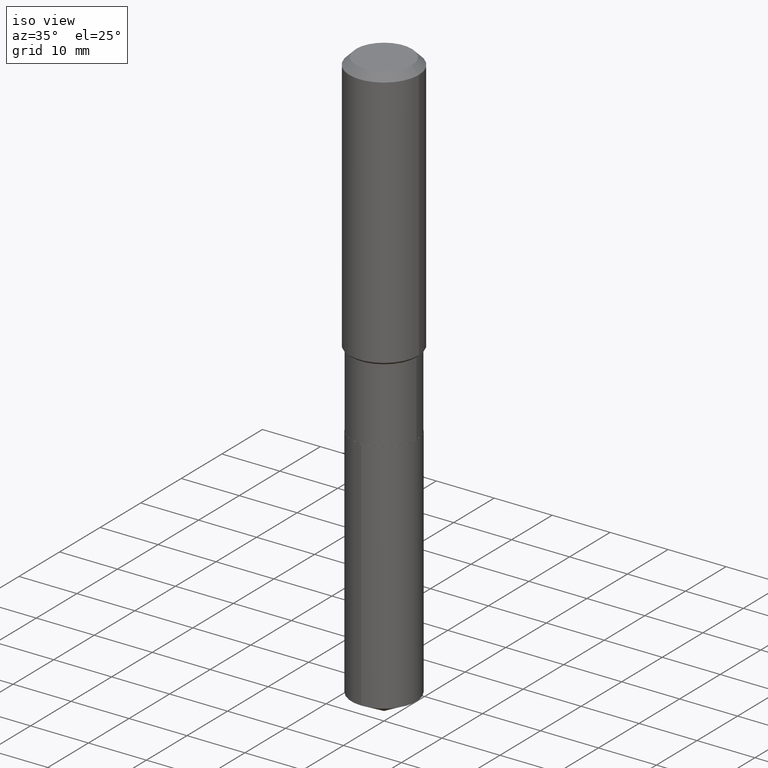
[diagram: clean part render]
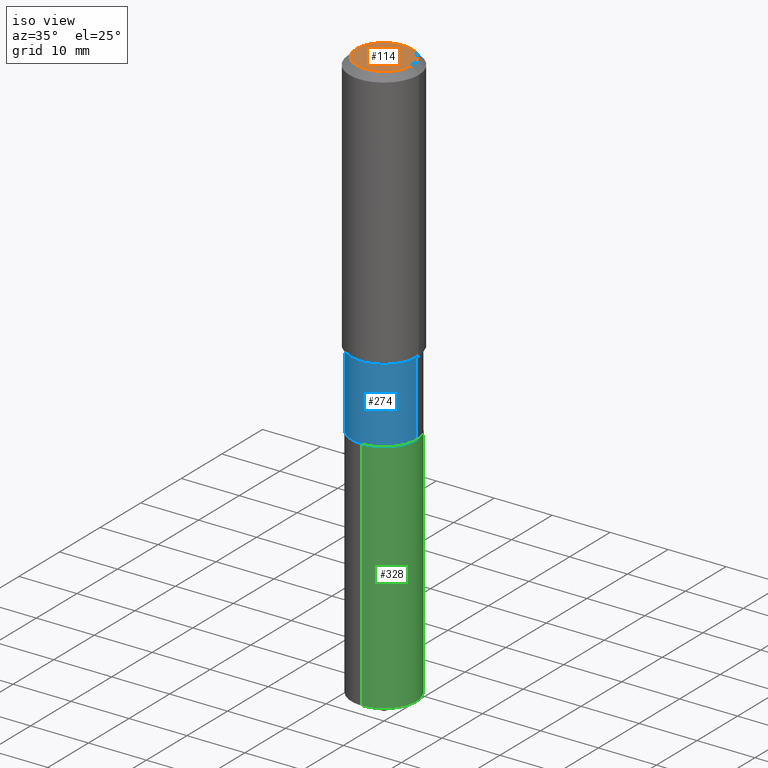
[diagram: same view with three faces highlighted in distinct colors, each labeled with its STEP entity id]
A machine part, iso view with three faces highlighted in distinct colors.
Their STEP definitions:

[orange] entity #114 — the highlighted planar face has unit normal (0, -0, -1).
#1 = DIRECTION ( 'NONE',  ( 1.000000000000000000, -6.982962677686266711E-15, 4.876185090822587894E-29 ) ) ;
#32 = CIRCLE ( 'NONE', #482, 0.1889600000000000168 ) ;
#47 = ORIENTED_EDGE ( 'NONE', *, *, #322, .T. ) ;
#48 = AXIS2_PLACEMENT_3D ( 'NONE', #88, #195, #1 ) ;
#81 = CARTESIAN_POINT ( 'NONE',  ( -4.713871149261273121E-47, 6.730158695841826722E-33, 1.927594061857931128E-18 ) ) ;
#88 = CARTESIAN_POINT ( 'NONE',  ( -9.427742298522546243E-47, 1.346031739168365344E-32, 3.855188123715862256E-18 ) ) ;
#111 = DIRECTION ( 'NONE',  ( 1.000000000000000000, -6.982962677686266711E-15, 4.876185090822587894E-29 ) ) ;
#112 = EDGE_CURVE ( 'NONE', #142, #450, #32, .T. ) ;
#114 = ADVANCED_FACE ( 'NONE', ( #454 ), #490, .F. ) ;
#142 = VERTEX_POINT ( 'NONE', #298 ) ;
#150 = DIRECTION ( 'NONE',  ( -1.000000000000000000, 6.982962677686265922E-15, -4.876176775795935793E-29 ) ) ;
#151 = EDGE_LOOP ( 'NONE', ( #388, #47 ) ) ;
#195 = DIRECTION ( 'NONE',  ( -2.445468806185136597E-29, 3.491481338843145583E-15, 1.000000000000000000 ) ) ;
#298 = CARTESIAN_POINT ( 'NONE',  ( -0.1889600000000000168, 1.401969416799070942E-15, 3.855188123706346622E-18 ) ) ;
#300 = CIRCLE ( 'NONE', #48, 0.1889600000000000168 ) ;
#322 = EDGE_CURVE ( 'NONE', #450, #142, #300, .T. ) ;
#324 = AXIS2_PLACEMENT_3D ( 'NONE', #81, #444, #150 ) ;
#374 = DIRECTION ( 'NONE',  ( -2.445468806185136597E-29, 3.491481338843145583E-15, 1.000000000000000000 ) ) ;
#388 = ORIENTED_EDGE ( 'NONE', *, *, #112, .T. ) ;
#444 = DIRECTION ( 'NONE',  ( 2.438088387897960049E-29, -3.491481338843145188E-15, -1.000000000000000000 ) ) ;
#447 = CARTESIAN_POINT ( 'NONE',  ( -9.427742298522546243E-47, 1.346031739168365344E-32, 3.855188123715862256E-18 ) ) ;
#450 = VERTEX_POINT ( 'NONE', #464 ) ;
#454 = FACE_OUTER_BOUND ( 'NONE', #151, .T. ) ;
#464 = CARTESIAN_POINT ( 'NONE',  ( 0.1889600000000000168, -1.540873453589747738E-15, 3.855188123725863225E-18 ) ) ;
#482 = AXIS2_PLACEMENT_3D ( 'NONE', #447, #374, #111 ) ;
#490 = PLANE ( 'NONE',  #324 ) ;

[blue] entity #274 — the highlighted cylindrical surface (partial cylindrical patch) has radius 5.5994 mm, axis along (-0, 0, 1).
#4 = FACE_OUTER_BOUND ( 'NONE', #232, .T. ) ;
#6 = VERTEX_POINT ( 'NONE', #71 ) ;
#16 = VECTOR ( 'NONE', #479, 39.37007874015748143 ) ;
#24 = EDGE_CURVE ( 'NONE', #269, #6, #284, .T. ) ;
#27 = LINE ( 'NONE', #58, #16 ) ;
#34 = EDGE_CURVE ( 'NONE', #269, #419, #340, .T. ) ;
#43 = ORIENTED_EDGE ( 'NONE', *, *, #24, .F. ) ;
#44 = DIRECTION ( 'NONE',  ( -2.445468806185136597E-29, 3.491481338843145583E-15, 1.000000000000000000 ) ) ;
#51 = DIRECTION ( 'NONE',  ( 1.000000000000000000, -6.982962677686265133E-15, 0.000000000000000000 ) ) ;
#54 = EDGE_CURVE ( 'NONE', #419, #94, #27, .T. ) ;
#58 = CARTESIAN_POINT ( 'NONE',  ( 0.2204499999999999793, -1.539394122295937264E-15, 1.074953170224213743E-29 ) ) ;
#62 = CARTESIAN_POINT ( 'NONE',  ( 5.601835394328292774E-29, -7.997936302887994361E-15, -2.290700000000000180 ) ) ;
#71 = CARTESIAN_POINT ( 'NONE',  ( -0.2204499999999999238, -5.547327192842826592E-15, -1.784200000000000008 ) ) ;
#85 = CARTESIAN_POINT ( 'NONE',  ( 0.000000000000000000, 0.000000000000000000, 0.000000000000000000 ) ) ;
#94 = VERTEX_POINT ( 'NONE', #478 ) ;
#197 = CYLINDRICAL_SURFACE ( 'NONE', #449, 0.2204499999999999793 ) ;
#201 = CARTESIAN_POINT ( 'NONE',  ( 4.363205443995520859E-29, -6.229501004763940248E-15, -1.784200000000000008 ) ) ;
#217 = DIRECTION ( 'NONE',  ( -2.445468806185136877E-29, 3.491481338843145188E-15, 1.000000000000000000 ) ) ;
#232 = EDGE_LOOP ( 'NONE', ( #43, #271, #461, #235 ) ) ;
#235 = ORIENTED_EDGE ( 'NONE', *, *, #377, .F. ) ;
#269 = VERTEX_POINT ( 'NONE', #354 ) ;
#271 = ORIENTED_EDGE ( 'NONE', *, *, #34, .T. ) ;
#274 = ADVANCED_FACE ( 'NONE', ( #4 ), #197, .T. ) ;
#284 = LINE ( 'NONE', #291, #433 ) ;
#285 = CIRCLE ( 'NONE', #293, 0.2204499999999999238 ) ;
#291 = CARTESIAN_POINT ( 'NONE',  ( -0.2204499999999999793, 1.566391460983140713E-15, -1.084379240646693833E-29 ) ) ;
#293 = AXIS2_PLACEMENT_3D ( 'NONE', #201, #44, #51 ) ;
#316 = DIRECTION ( 'NONE',  ( -2.445468806185136597E-29, 3.491481338843145583E-15, 1.000000000000000000 ) ) ;
#327 = DIRECTION ( 'NONE',  ( -2.445468806185136597E-29, 3.491481338843145583E-15, 1.000000000000000000 ) ) ;
#340 = CIRCLE ( 'NONE', #403, 0.2204500000000000071 ) ;
#350 = DIRECTION ( 'NONE',  ( 1.000000000000000000, -6.982962677686265922E-15, 4.876176775795934672E-29 ) ) ;
#354 = CARTESIAN_POINT ( 'NONE',  ( -0.2204500000000000071, -5.547327192842825803E-15, -2.290700000000000180 ) ) ;
#366 = DIRECTION ( 'NONE',  ( 1.000000000000000000, -6.982962677686267499E-15, 0.000000000000000000 ) ) ;
#377 = EDGE_CURVE ( 'NONE', #6, #94, #285, .T. ) ;
#403 = AXIS2_PLACEMENT_3D ( 'NONE', #62, #327, #366 ) ;
#419 = VERTEX_POINT ( 'NONE', #421 ) ;
#421 = CARTESIAN_POINT ( 'NONE',  ( 0.2204500000000000071, -9.537330425183932217E-15, -2.290700000000000180 ) ) ;
#433 = VECTOR ( 'NONE', #217, 39.37007874015748143 ) ;
#449 = AXIS2_PLACEMENT_3D ( 'NONE', #85, #316, #350 ) ;
#461 = ORIENTED_EDGE ( 'NONE', *, *, #54, .T. ) ;
#478 = CARTESIAN_POINT ( 'NONE',  ( 0.2204499999999999238, -7.768895127059877315E-15, -1.784200000000000008 ) ) ;
#479 = DIRECTION ( 'NONE',  ( -2.445468806185136877E-29, 3.491481338843145188E-15, 1.000000000000000000 ) ) ;

[green] entity #328 — the highlighted cylindrical surface (partial cylindrical patch) has radius 5.5994 mm, axis along (-0, 0, 1).
#10 = CYLINDRICAL_SURFACE ( 'NONE', #116, 0.2204500000000000071 ) ;
#21 = DIRECTION ( 'NONE',  ( -6.982962677686266711E-15, -1.000000000000000000, 3.717642994326508870E-15 ) ) ;
#29 = VERTEX_POINT ( 'NONE', #290 ) ;
#36 = CARTESIAN_POINT ( 'NONE',  ( -1.539394122295842009E-15, -0.2204500000000136350, -3.898484655790226849 ) ) ;
#37 = EDGE_CURVE ( 'NONE', #164, #29, #466, .T. ) ;
#38 = AXIS2_PLACEMENT_3D ( 'NONE', #99, #288, #109 ) ;
#55 = DIRECTION ( 'NONE',  ( -2.445387282739292518E-29, 3.491598085057620892E-15, 1.000000000000000000 ) ) ;
#61 = CIRCLE ( 'NONE', #373, 0.2204500000000000071 ) ;
#63 = DIRECTION ( 'NONE',  ( -2.445387282739292518E-29, 3.491598085057620892E-15, 1.000000000000000000 ) ) ;
#86 = FACE_OUTER_BOUND ( 'NONE', #429, .T. ) ;
#91 = CARTESIAN_POINT ( 'NONE',  ( -1.539394122295881453E-15, -0.2204500000000080007, -2.291199999999999459 ) ) ;
#99 = CARTESIAN_POINT ( 'NONE',  ( 9.533491585742809254E-29, -1.361167406985707085E-14, -3.898484655790227293 ) ) ;
#106 = VERTEX_POINT ( 'NONE', #369 ) ;
#109 = DIRECTION ( 'NONE',  ( -6.982962677686266711E-15, -1.000000000000000000, 2.478428662884339509E-15 ) ) ;
#116 = AXIS2_PLACEMENT_3D ( 'NONE', #264, #239, #270 ) ;
#163 = DIRECTION ( 'NONE',  ( -2.445387282739292518E-29, 3.491598085057620892E-15, 1.000000000000000000 ) ) ;
#164 = VERTEX_POINT ( 'NONE', #36 ) ;
#179 = ORIENTED_EDGE ( 'NONE', *, *, #474, .F. ) ;
#208 = CARTESIAN_POINT ( 'NONE',  ( 5.603058128731384454E-29, -7.999682043557415076E-15, -2.291200000000000347 ) ) ;
#222 = VECTOR ( 'NONE', #163, 39.37007874015748143 ) ;
#234 = LINE ( 'NONE', #268, #222 ) ;
#239 = DIRECTION ( 'NONE',  ( -2.445387282739292518E-29, 3.491598085057620892E-15, 1.000000000000000000 ) ) ;
#264 = CARTESIAN_POINT ( 'NONE',  ( 5.603058128731384454E-29, -7.999682043557415076E-15, -2.291200000000000347 ) ) ;
#268 = CARTESIAN_POINT ( 'NONE',  ( 1.566391460983196722E-15, 0.2204499999999920135, -2.291200000000000792 ) ) ;
#270 = DIRECTION ( 'NONE',  ( -6.982962677686266711E-15, -1.000000000000000000, 3.717642994326508870E-15 ) ) ;
#288 = DIRECTION ( 'NONE',  ( -2.445387282739292518E-29, 3.491598085057620892E-15, 1.000000000000000000 ) ) ;
#290 = CARTESIAN_POINT ( 'NONE',  ( 1.566391460983236165E-15, 0.2204499999999864068, -3.898484655790228182 ) ) ;
#301 = EDGE_CURVE ( 'NONE', #164, #106, #418, .T. ) ;
#306 = EDGE_CURVE ( 'NONE', #29, #439, #234, .T. ) ;
#328 = ADVANCED_FACE ( 'NONE', ( #86 ), #10, .T. ) ;
#369 = CARTESIAN_POINT ( 'NONE',  ( -1.539394122295881453E-15, -0.2204500000000080007, -2.291199999999999459 ) ) ;
#372 = VECTOR ( 'NONE', #55, 39.37007874015748143 ) ;
#373 = AXIS2_PLACEMENT_3D ( 'NONE', #208, #63, #21 ) ;
#390 = ORIENTED_EDGE ( 'NONE', *, *, #306, .T. ) ;
#418 = LINE ( 'NONE', #91, #372 ) ;
#422 = ORIENTED_EDGE ( 'NONE', *, *, #301, .F. ) ;
#424 = CARTESIAN_POINT ( 'NONE',  ( 1.566391460983236559E-15, 0.2204499999999920135, -2.291200000000000792 ) ) ;
#429 = EDGE_LOOP ( 'NONE', ( #431, #390, #179, #422 ) ) ;
#431 = ORIENTED_EDGE ( 'NONE', *, *, #37, .T. ) ;
#439 = VERTEX_POINT ( 'NONE', #424 ) ;
#466 = CIRCLE ( 'NONE', #38, 0.2204500000000000071 ) ;
#474 = EDGE_CURVE ( 'NONE', #106, #439, #61, .T. ) ;